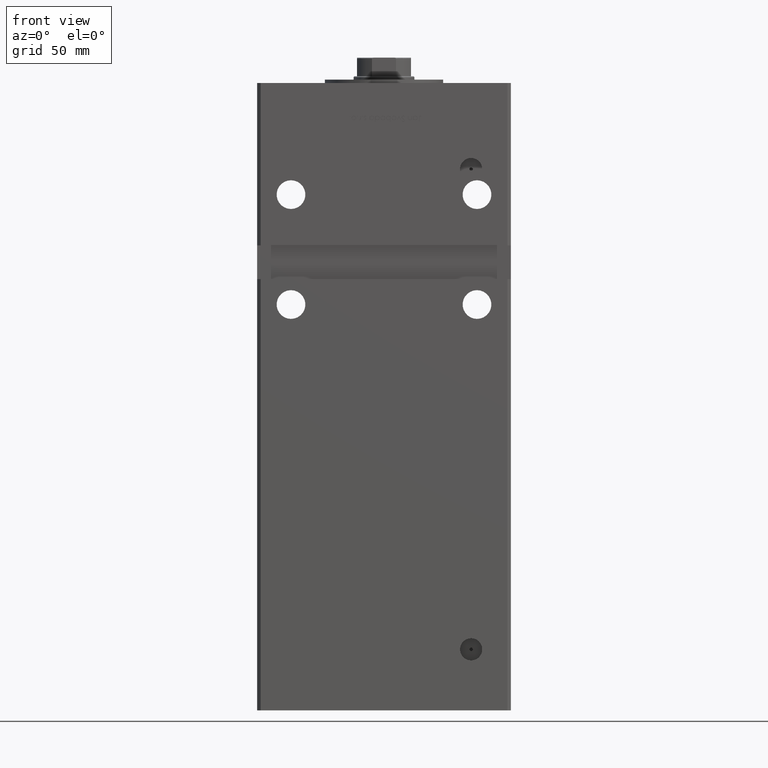
[diagram: clean part render]
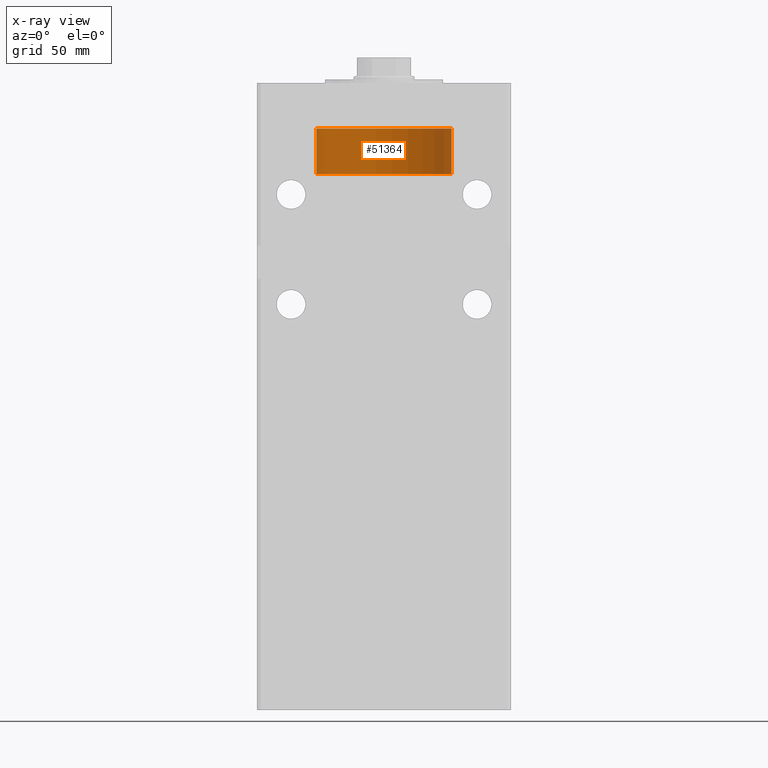
[diagram: x-ray — body ghosted, one internal face saturated and labeled with its STEP entity id]
A machine part, front view, then the same camera in x-ray: the body is ghosted and one INTERNAL B-rep face — a face not visible from any outside direction — is saturated and labeled: STEP entity #51364.
In plain terms, the highlighted cylindrical surface (partial cylindrical patch) has radius 40 mm, axis along (0, 0, 1).
Its self-contained STEP definition (entity closure, byte-faithful):
#822 = DIRECTION ( 'NONE',  ( -0.000000000000000000, -0.000000000000000000, 1.000000000000000000 ) ) ;
#1121 = ORIENTED_EDGE ( 'NONE', *, *, #30041, .T. ) ;
#1602 = CARTESIAN_POINT ( 'NONE',  ( 40.00000000000000000, 0.000000000000000000, -27.00000000000000000 ) ) ;
#1735 = DIRECTION ( 'NONE',  ( -1.000000000000000000, 0.000000000000000000, 0.000000000000000000 ) ) ;
#2256 = VERTEX_POINT ( 'NONE', #1602 ) ;
#2954 = EDGE_CURVE ( 'NONE', #16965, #2256, #33808, .T. ) ;
#6014 = VERTEX_POINT ( 'NONE', #50245 ) ;
#7845 = VECTOR ( 'NONE', #12927, 1000.000000000000000 ) ;
#8139 = AXIS2_PLACEMENT_3D ( 'NONE', #17579, #41733, #29121 ) ;
#8915 = LINE ( 'NONE', #32500, #7845 ) ;
#9409 = AXIS2_PLACEMENT_3D ( 'NONE', #13811, #9793, #1735 ) ;
#9793 = DIRECTION ( 'NONE',  ( 0.000000000000000000, 0.000000000000000000, -1.000000000000000000 ) ) ;
#11785 = LINE ( 'NONE', #16065, #49039 ) ;
#12882 = CYLINDRICAL_SURFACE ( 'NONE', #42241, 40.00000000000000000 ) ;
#12927 = DIRECTION ( 'NONE',  ( -0.000000000000000000, -0.000000000000000000, 1.000000000000000000 ) ) ;
#13147 = DIRECTION ( 'NONE',  ( 1.000000000000000000, 0.000000000000000000, 0.000000000000000000 ) ) ;
#13811 = CARTESIAN_POINT ( 'NONE',  ( 0.000000000000000000, 0.000000000000000000, -54.00000000000000000 ) ) ;
#16065 = CARTESIAN_POINT ( 'NONE',  ( 40.00000000000000000, 0.000000000000000000, -54.00000000000000000 ) ) ;
#16965 = VERTEX_POINT ( 'NONE', #17273 ) ;
#17273 = CARTESIAN_POINT ( 'NONE',  ( -40.00000000000000000, 4.898587196589413026E-15, -27.00000000000000000 ) ) ;
#17579 = CARTESIAN_POINT ( 'NONE',  ( 0.000000000000000000, 0.000000000000000000, -27.00000000000000000 ) ) ;
#19677 = CIRCLE ( 'NONE', #9409, 40.00000000000000000 ) ;
#20089 = ORIENTED_EDGE ( 'NONE', *, *, #28680, .F. ) ;
#24380 = DIRECTION ( 'NONE',  ( -0.000000000000000000, -0.000000000000000000, 1.000000000000000000 ) ) ;
#28680 = EDGE_CURVE ( 'NONE', #31017, #2256, #11785, .T. ) ;
#29121 = DIRECTION ( 'NONE',  ( 1.000000000000000000, 0.000000000000000000, 0.000000000000000000 ) ) ;
#30041 = EDGE_CURVE ( 'NONE', #6014, #16965, #8915, .T. ) ;
#31017 = VERTEX_POINT ( 'NONE', #47271 ) ;
#32500 = CARTESIAN_POINT ( 'NONE',  ( -40.00000000000000000, 4.898587196589413026E-15, -54.00000000000000000 ) ) ;
#33256 = EDGE_LOOP ( 'NONE', ( #37796, #1121, #39963, #20089 ) ) ;
#33808 = CIRCLE ( 'NONE', #8139, 40.00000000000000000 ) ;
#36317 = EDGE_CURVE ( 'NONE', #6014, #31017, #19677, .T. ) ;
#37544 = CARTESIAN_POINT ( 'NONE',  ( 0.000000000000000000, 0.000000000000000000, -54.00000000000000000 ) ) ;
#37796 = ORIENTED_EDGE ( 'NONE', *, *, #36317, .F. ) ;
#39963 = ORIENTED_EDGE ( 'NONE', *, *, #2954, .T. ) ;
#41733 = DIRECTION ( 'NONE',  ( 0.000000000000000000, -0.000000000000000000, -1.000000000000000000 ) ) ;
#42241 = AXIS2_PLACEMENT_3D ( 'NONE', #37544, #822, #13147 ) ;
#47271 = CARTESIAN_POINT ( 'NONE',  ( 40.00000000000000000, 0.000000000000000000, -54.00000000000000000 ) ) ;
#49039 = VECTOR ( 'NONE', #24380, 1000.000000000000000 ) ;
#49886 = FACE_OUTER_BOUND ( 'NONE', #33256, .T. ) ;
#50245 = CARTESIAN_POINT ( 'NONE',  ( -40.00000000000000000, 4.898587196589413026E-15, -54.00000000000000000 ) ) ;
#51364 = ADVANCED_FACE ( 'NONE', ( #49886 ), #12882, .T. ) ;